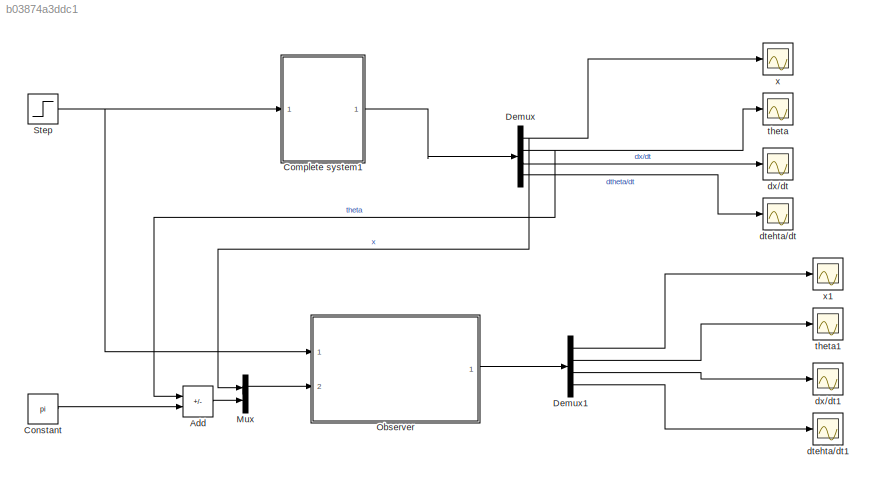
MODEL mdl_b03874a3ddc1
KIND model
CONFIG AbsTol = auto
CONFIG EnableMultiTasking = on
CONFIG FixedStep = 0.01
CONFIG MaxStep = auto
CONFIG MinStep = auto
CONFIG RelTol = 1e-6
CONFIG SampleTimeConstraint = Unconstrained
CONFIG SolverName = ode1
CONFIG StartTime = 0.0
CONFIG StopTime = 50
BLOCK [Sum] Add
  IconShape = rectangular
  Inputs = +-
  Ports = [2, 1]
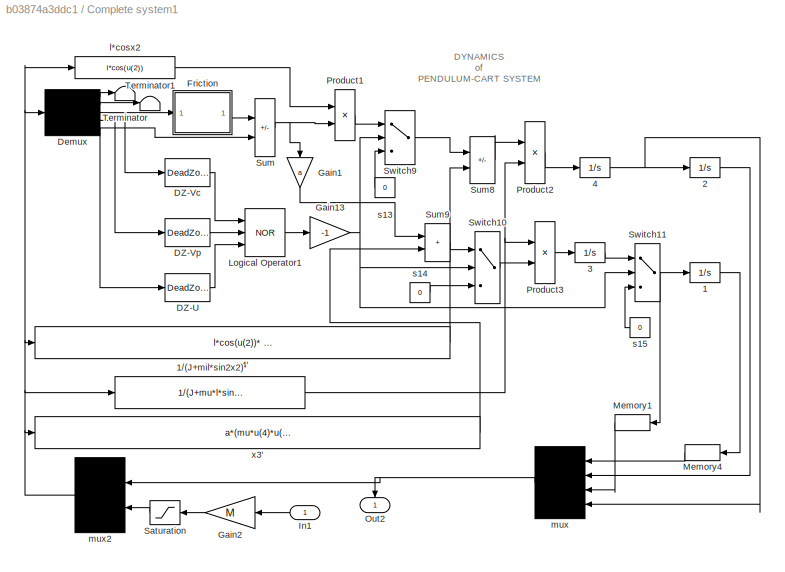
BLOCK [SubSystem] Complete system1
  Ports = [1, 1]
  RequestExecContextInheritance = off
BLOCK [Integrator] Complete system1/1
  Ports = [1, 1]
BLOCK [Fcn] Complete system1/1//(J+mil*sin2x2)
  Expr = 1/(J+mu*l*sin(u[2])*sin(u[2]))
BLOCK [Integrator] Complete system1/2
  InitialCondition = pi
  Ports = [1, 1]
BLOCK [Integrator] Complete system1/3
  Ports = [1, 1]
BLOCK [Integrator] Complete system1/4
  Ports = [1, 1]
BLOCK [DeadZone] Complete system1/DZ-U
  LowerValue = -DZu
  UpperValue = DZu
BLOCK [DeadZone] Complete system1/DZ-Vc
  LowerValue = -DZcv
  UpperValue = DZcv
BLOCK [DeadZone] Complete system1/DZ-Vp
  LowerValue = -DZcp
  UpperValue = DZcp
BLOCK [Demux] Complete system1/Demux
  DisplayOption = none
  Outputs = 5
  Ports = [1, 5]
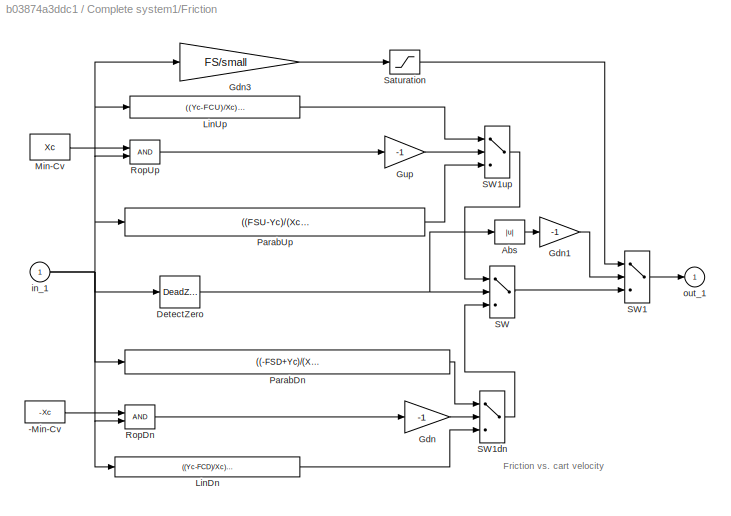
BLOCK [SubSystem] Complete system1/Friction
  NameLocation = top
  Ports = [1, 1]
  RequestExecContextInheritance = off
  ShowPortLabels = none
BLOCK [Constant] Complete system1/Friction/-Min-Cv
  Value = -Xc
BLOCK [Abs] Complete system1/Friction/Abs
BLOCK [DeadZone] Complete system1/Friction/DetectZero
  LowerValue = -Z
  UpperValue = Z
BLOCK [Gain] Complete system1/Friction/Gdn
  Gain = -1
  OutDataTypeStr = Inherit: Same as input
  ParamDataTypeStr = Inherit: Same as input
  SaturateOnIntegerOverflow = on
BLOCK [Gain] Complete system1/Friction/Gdn1
  Gain = -1
  OutDataTypeStr = Inherit: Same as input
  ParamDataTypeStr = Inherit: Same as input
  SaturateOnIntegerOverflow = on
BLOCK [Gain] Complete system1/Friction/Gdn3
  Gain = FS/small
  OutDataTypeStr = Inherit: Same as input
  ParamDataTypeStr = Inherit: Same as input
  SaturateOnIntegerOverflow = on
BLOCK [Gain] Complete system1/Friction/Gup
  Gain = -1
  OutDataTypeStr = Inherit: Same as input
  ParamDataTypeStr = Inherit: Same as input
  SaturateOnIntegerOverflow = on
BLOCK [Fcn] Complete system1/Friction/LinDn
  Expr = ((Yc-FCD)/Xc)*u(1)-FCD
BLOCK [Fcn] Complete system1/Friction/LinUp
  Expr = ((Yc-FCU)/Xc)*u(1)+FCU
BLOCK [Constant] Complete system1/Friction/Min-Cv
  Value = Xc
BLOCK [Fcn] Complete system1/Friction/ParabDn
  Expr = ((-FSD+Yc)/(Xc*Xc))*u[1]*u(1)-2*((-FSD+Yc)/-Xc)*u(1)-FSD
BLOCK [Fcn] Complete system1/Friction/ParabUp
  Expr = ((FSU-Yc)/(Xc*Xc))*u[1]*u(1)-2*((FSU-Yc)/Xc)*u(1)+FSU
BLOCK [RelationalOperator] Complete system1/Friction/RopDn
  Ports = [2, 1]
BLOCK [RelationalOperator] Complete system1/Friction/RopUp
  Ports = [2, 1]
BLOCK [Switch] Complete system1/Friction/SW
BLOCK [Switch] Complete system1/Friction/SW1
BLOCK [Switch] Complete system1/Friction/SW1dn
BLOCK [Switch] Complete system1/Friction/SW1up
BLOCK [Saturate] Complete system1/Friction/Saturation
  LowerLimit = FSdl
  UpperLimit = FSul
BLOCK [Inport] Complete system1/Friction/in_1
BLOCK [Outport] Complete system1/Friction/out_1
  InitialOutput = 0
BLOCK [Gain] Complete system1/Gain1
  Gain = a
  NameLocation = right
  OutDataTypeStr = Inherit: Same as input
  ParamDataTypeStr = Inherit: Same as input
  SaturateOnIntegerOverflow = on
BLOCK [Gain] Complete system1/Gain13
  Gain = -1
  OutDataTypeStr = Inherit: Same as input
  ParamDataTypeStr = Inherit: Same as input
  SaturateOnIntegerOverflow = on
BLOCK [Gain] Complete system1/Gain2
  Gain = M
  OutDataTypeStr = Inherit: Same as input
  ParamDataTypeStr = Inherit: Same as input
BLOCK [Inport] Complete system1/In1
BLOCK [Logic] Complete system1/Logical Operator1
  Inputs = 3
  Operator = NOR
  Ports = [3, 1]
BLOCK [Memory] Complete system1/Memory1
BLOCK [Memory] Complete system1/Memory4
BLOCK [Outport] Complete system1/Out2
  NameLocation = right
BLOCK [Product] Complete system1/Product1
  InputSameDT = on
  OutDataTypeStr = Inherit: Same as first input
  Ports = [2, 1]
  RndMeth = Zero
  SaturateOnIntegerOverflow = on
BLOCK [Product] Complete system1/Product2
  InputSameDT = on
  OutDataTypeStr = Inherit: Same as first input
  Ports = [2, 1]
  RndMeth = Zero
  SaturateOnIntegerOverflow = on
BLOCK [Product] Complete system1/Product3
  InputSameDT = on
  OutDataTypeStr = Inherit: Same as first input
  Ports = [2, 1]
  RndMeth = Zero
  SaturateOnIntegerOverflow = on
BLOCK [Saturate] Complete system1/Saturation
  LowerLimit = -Um*M
  UpperLimit = Um*M
BLOCK [Sum] Complete system1/Sum
  IconShape = rectangular
  InputSameDT = on
  Inputs = -+
  OutDataTypeStr = Inherit: Same as first input
  Ports = [2, 1]
  SaturateOnIntegerOverflow = on
BLOCK [Sum] Complete system1/Sum8
  IconShape = rectangular
  InputSameDT = on
  Inputs = -+
  OutDataTypeStr = Inherit: Same as first input
  Ports = [2, 1]
  SaturateOnIntegerOverflow = on
BLOCK [Sum] Complete system1/Sum9
  IconShape = rectangular
  InputSameDT = on
  OutDataTypeStr = Inherit: Same as first input
  Ports = [2, 1]
  SaturateOnIntegerOverflow = on
BLOCK [Switch] Complete system1/Switch10
BLOCK [Switch] Complete system1/Switch11
BLOCK [Switch] Complete system1/Switch9
BLOCK [Terminator] Complete system1/Terminator
BLOCK [Terminator] Complete system1/Terminator1
BLOCK [Fcn] Complete system1/l*cosx2
  Expr = l*cos(u(2))
BLOCK [Mux] Complete system1/mux
  Ports = [4, 1]
BLOCK [Mux] Complete system1/mux2
  Inputs = [4 1]
  Ports = [2, 1]
BLOCK [Constant] Complete system1/s13
  NameLocation = top
  Value = 0
BLOCK [Constant] Complete system1/s14
  NameLocation = top
  Value = 0
BLOCK [Constant] Complete system1/s15
  NameLocation = top
  Value = 0
BLOCK [Fcn] Complete system1/x3'
  Expr = a*(mu*u(4)*u(4)*sin(u(2)) )-l*cos(u(2))*(mu*g*sin(u(2))-fp*u(4))
BLOCK [Fcn] Complete system1/x4'
  Expr = l*cos(u(2))* (-mu*u(4)*u(4)*sin(u(2))) + mu*g*sin(u(2))-fp*u(4)
BLOCK [Constant] Constant
  Value = pi
BLOCK [Demux] Demux
  Ports = [1, 4]
BLOCK [Demux] Demux1
  Ports = [1, 4]
BLOCK [Mux] Mux
  DisplayOption = bar
  Inputs = 2
  Ports = [2, 1]
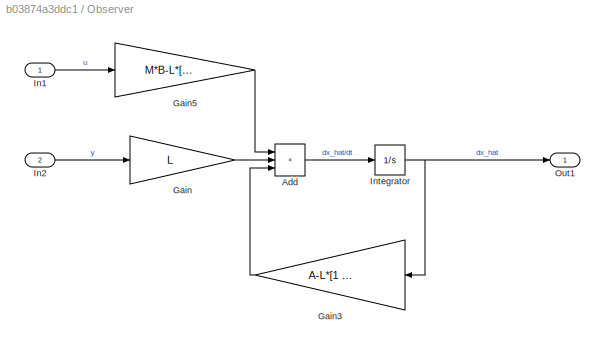
BLOCK [SubSystem] Observer
  Ports = [2, 1]
  RequestExecContextInheritance = off
BLOCK [Sum] Observer/Add
  IconShape = rectangular
  Inputs = +++
  Ports = [3, 1]
BLOCK [Gain] Observer/Gain
  Gain = L
  Multiplication = Matrix(K*u)
BLOCK [Gain] Observer/Gain3
  Gain = A-L*[1 0 0 0;0 1 0 0]
  Multiplication = Matrix(K*u)
  NameLocation = top
BLOCK [Gain] Observer/Gain5
  Gain = M*B-L*[0;0]
  Multiplication = Matrix(K*u)
BLOCK [Inport] Observer/In1
BLOCK [Inport] Observer/In2
  Port = 2
BLOCK [Integrator] Observer/Integrator
  Ports = [1, 1]
BLOCK [Outport] Observer/Out1
BLOCK [Step] Step
  After = 0.3
  SampleTime = 0
BLOCK [Scope] dtehta//dt
  Floating = off
  NumInputPorts = 1
  Ports = [1]
  ScopeSpecificationString = Simulink.scopes.TimeScopeBlockCfg('CurrentConfiguration', extmgr.ConfigurationSet(extmgr.Configuration('Core','General UI',true),extmgr.Configuration('Core','Source UI',true),extmgr.Configuration('Sources','WiredSimulink',true,'DataLogging',true,'DataLoggingVariableName','dtheta','DataLoggingLimitDataPoints',true,'DataLoggingSaveFormat','Array','DataLoggingDecimation','1','DataLoggingDecimateData'...<+1685ch>
BLOCK [Scope] dtehta//dt1
  Floating = off
  NumInputPorts = 1
  Ports = [1]
  ScopeSpecificationString = Simulink.scopes.TimeScopeBlockCfg('CurrentConfiguration', extmgr.ConfigurationSet(extmgr.Configuration('Core','General UI',true),extmgr.Configuration('Core','Source UI',true),extmgr.Configuration('Sources','WiredSimulink',true,'DataLogging',true,'DataLoggingVariableName','dtheta6','DataLoggingLimitDataPoints',true,'DataLoggingSaveFormat','Array','DataLoggingDecimation','1','DataLoggingDecimateData...<+1681ch>
BLOCK [Scope] dx//dt
  Floating = off
  NumInputPorts = 1
  Ports = [1]
  ScopeSpecificationString = Simulink.scopes.TimeScopeBlockCfg('CurrentConfiguration', extmgr.ConfigurationSet(extmgr.Configuration('Core','General UI',true),extmgr.Configuration('Core','Source UI',true),extmgr.Configuration('Sources','WiredSimulink',true,'DataLogging',true,'DataLoggingVariableName','dx','DataLoggingLimitDataPoints',true,'DataLoggingSaveFormat','Array','DataLoggingDecimation','1','DataLoggingDecimateData',tru...<+1679ch>
BLOCK [Scope] dx//dt1
  Floating = off
  NumInputPorts = 1
  Ports = [1]
  ScopeSpecificationString = Simulink.scopes.TimeScopeBlockCfg('CurrentConfiguration', extmgr.ConfigurationSet(extmgr.Configuration('Core','General UI',true),extmgr.Configuration('Core','Source UI',true),extmgr.Configuration('Sources','WiredSimulink',true,'DataLogging',true,'DataLoggingVariableName','dx6','DataLoggingLimitDataPoints',true,'DataLoggingSaveFormat','Array','DataLoggingDecimation','1','DataLoggingDecimateData',tr...<+1685ch>
BLOCK [Scope] theta
  Floating = off
  NumInputPorts = 1
  Ports = [1]
  ScopeSpecificationString = Simulink.scopes.TimeScopeBlockCfg('CurrentConfiguration', extmgr.ConfigurationSet(extmgr.Configuration('Core','General UI',true),extmgr.Configuration('Core','Source UI',true),extmgr.Configuration('Sources','WiredSimulink',true,'DataLogging',true,'DataLoggingVariableName','theta','DataLoggingLimitDataPoints',true,'DataLoggingSaveFormat','Array','DataLoggingDecimation','1','DataLoggingDecimateData',...<+1678ch>
BLOCK [Scope] theta1
  Floating = off
  NumInputPorts = 1
  Ports = [1]
  ScopeSpecificationString = Simulink.scopes.TimeScopeBlockCfg('CurrentConfiguration', extmgr.ConfigurationSet(extmgr.Configuration('Core','General UI',true),extmgr.Configuration('Core','Source UI',true),extmgr.Configuration('Sources','WiredSimulink',true,'DataLogging',true,'DataLoggingVariableName','theta6','DataLoggingLimitDataPoints',true,'DataLoggingSaveFormat','Array','DataLoggingDecimation','1','DataLoggingDecimateData'...<+1684ch>
BLOCK [Scope] x
  Floating = off
  NumInputPorts = 1
  Ports = [1]
  ScopeSpecificationString = Simulink.scopes.TimeScopeBlockCfg('CurrentConfiguration', extmgr.ConfigurationSet(extmgr.Configuration('Core','General UI',true),extmgr.Configuration('Core','Source UI',true),extmgr.Configuration('Sources','WiredSimulink',true,'DataLogging',true,'DataLoggingVariableName','x','DataLoggingLimitDataPoints',true,'DataLoggingSaveFormat','Array','DataLoggingDecimation','1','DataLoggingDecimateData',true...<+1682ch>
BLOCK [Scope] x1
  Floating = off
  NumInputPorts = 1
  Ports = [1]
  ScopeSpecificationString = Simulink.scopes.TimeScopeBlockCfg('CurrentConfiguration', extmgr.ConfigurationSet(extmgr.Configuration('Core','General UI',true),extmgr.Configuration('Core','Source UI',true),extmgr.Configuration('Sources','WiredSimulink',true,'DataLogging',true,'DataLoggingVariableName','x6','DataLoggingLimitDataPoints',true,'DataLoggingSaveFormat','Array','DataLoggingDecimation','1','DataLoggingDecimateData',tru...<+1702ch>
ANNOTATION Complete system1: DYNAMICS of PENDULUM-CART SYSTEM
ANNOTATION Complete system1/Friction: Friction vs. cart velocity
LINE Add:1 -> Mux:2
NET Complete system1/1//(J+mil*sin2x2):1 -> Complete system1/Product2:2, Complete system1/Product3:1
LINE Complete system1/1:1 -> Complete system1/Memory4:1
LINE Complete system1/2:1 -> Complete system1/mux:2
LINE Complete system1/3:1 -> Complete system1/Switch11:1
NET Complete system1/4:1 -> Complete system1/2:1, Complete system1/mux:4
LINE Complete system1/DZ-U:1 -> Complete system1/Logical Operator1:3
LINE Complete system1/DZ-Vc:1 -> Complete system1/Logical Operator1:1
LINE Complete system1/DZ-Vp:1 -> Complete system1/Logical Operator1:2
LINE Complete system1/Demux:1 -> Complete system1/Terminator:1
LINE Complete system1/Demux:2 -> Complete system1/Terminator1:1
NET Complete system1/Demux:3 -> Complete system1/DZ-Vc:1, Complete system1/Friction:1
LINE Complete system1/Demux:4 -> Complete system1/DZ-Vp:1
NET Complete system1/Demux:5 -> Complete system1/DZ-U:1, Complete system1/Sum:2
LINE Complete system1/Friction/-Min-Cv:1 -> Complete system1/Friction/RopDn:1
LINE Complete system1/Friction/Abs:1 -> Complete system1/Friction/Gdn1:1
NET Complete system1/Friction/DetectZero:1 -> Complete system1/Friction/Abs:1, Complete system1/Friction/SW:2
LINE Complete system1/Friction/Gdn1:1 -> Complete system1/Friction/SW1:2
LINE Complete system1/Friction/Gdn3:1 -> Complete system1/Friction/Saturation:1
LINE Complete system1/Friction/Gdn:1 -> Complete system1/Friction/SW1dn:2
LINE Complete system1/Friction/Gup:1 -> Complete system1/Friction/SW1up:2
LINE Complete system1/Friction/LinDn:1 -> Complete system1/Friction/SW1dn:3
LINE Complete system1/Friction/LinUp:1 -> Complete system1/Friction/SW1up:1
LINE Complete system1/Friction/Min-Cv:1 -> Complete system1/Friction/RopUp:1
LINE Complete system1/Friction/ParabDn:1 -> Complete system1/Friction/SW1dn:1
LINE Complete system1/Friction/ParabUp:1 -> Complete system1/Friction/SW1up:3
LINE Complete system1/Friction/RopDn:1 -> Complete system1/Friction/Gdn:1
LINE Complete system1/Friction/RopUp:1 -> Complete system1/Friction/Gup:1
LINE Complete system1/Friction/SW1:1 -> Complete system1/Friction/out_1:1
LINE Complete system1/Friction/SW1dn:1 -> Complete system1/Friction/SW:3
LINE Complete system1/Friction/SW1up:1 -> Complete system1/Friction/SW:1
LINE Complete system1/Friction/SW:1 -> Complete system1/Friction/SW1:3
LINE Complete system1/Friction/Saturation:1 -> Complete system1/Friction/SW1:1
NET Complete system1/Friction/in_1:1 -> Complete system1/Friction/DetectZero:1, Complete system1/Friction/Gdn3:1, Complete system1/Friction/LinDn:1, Complete system1/Friction/LinUp:1, Complete system1/Friction/ParabDn:1, Complete system1/Friction/ParabUp:1, Complete system1/Friction/RopDn:2, Complete system1/Friction/RopUp:2
LINE Complete system1/Friction:1 -> Complete system1/Sum:1
NET Complete system1/Gain13:1 -> Complete system1/Switch10:2, Complete system1/Switch11:2, Complete system1/Switch9:2
LINE Complete system1/Gain1:1 -> Complete system1/Sum9:1
LINE Complete system1/Gain2:1 -> Complete system1/Saturation:1
LINE Complete system1/In1:1 -> Complete system1/Gain2:1
LINE Complete system1/Logical Operator1:1 -> Complete system1/Gain13:1
LINE Complete system1/Memory1:1 -> Complete system1/mux:3
LINE Complete system1/Memory4:1 -> Complete system1/mux:1
LINE Complete system1/Product1:1 -> Complete system1/Switch9:1
LINE Complete system1/Product2:1 -> Complete system1/4:1
LINE Complete system1/Product3:1 -> Complete system1/3:1
LINE Complete system1/Saturation:1 -> Complete system1/mux2:2
LINE Complete system1/Sum8:1 -> Complete system1/Product2:1
LINE Complete system1/Sum9:1 -> Complete system1/Switch10:1
NET Complete system1/Sum:1 -> Complete system1/Gain1:1, Complete system1/Product1:2
LINE Complete system1/Switch10:1 -> Complete system1/Product3:2
NET Complete system1/Switch11:1 -> Complete system1/1:1, Complete system1/Memory1:1
LINE Complete system1/Switch9:1 -> Complete system1/Sum8:1
LINE Complete system1/l*cosx2:1 -> Complete system1/Product1:1
NET Complete system1/mux2:1 -> Complete system1/1//(J+mil*sin2x2):1, Complete system1/Demux:1, Complete system1/l*cosx2:1, Complete system1/x3':1, Complete system1/x4':1
NET Complete system1/mux:1 -> Complete system1/Out2:1, Complete system1/mux2:1
LINE Complete system1/s13:1 -> Complete system1/Switch9:3
LINE Complete system1/s14:1 -> Complete system1/Switch10:3
LINE Complete system1/s15:1 -> Complete system1/Switch11:3
LINE Complete system1/x3':1 -> Complete system1/Sum9:2
LINE Complete system1/x4':1 -> Complete system1/Sum8:2
LINE Complete system1:1 -> Demux:1
LINE Constant:1 -> Add:2
LINE Demux1:1 -> x1:1
LINE Demux1:2 -> theta1:1
LINE Demux1:3 -> dx//dt1:1
LINE Demux1:4 -> dtehta//dt1:1
NET Demux:1 -> Mux:1, x:1
NET Demux:2 -> Add:1, theta:1
LINE Demux:3 -> dx//dt:1
LINE Demux:4 -> dtehta//dt:1
LINE Mux:1 -> Observer:2
LINE Observer/Add:1 -> Observer/Integrator:1
LINE Observer/Gain3:1 -> Observer/Add:3
LINE Observer/Gain5:1 -> Observer/Add:1
LINE Observer/Gain:1 -> Observer/Add:2
LINE Observer/In1:1 -> Observer/Gain5:1
LINE Observer/In2:1 -> Observer/Gain:1
NET Observer/Integrator:1 -> Observer/Gain3:1, Observer/Out1:1
LINE Observer:1 -> Demux1:1
NET Step:1 -> Complete system1:1, Observer:1
note: NET lines group one-source signal fan-out (src -> all destinations, sorted); 1:1 wires keep LINE
